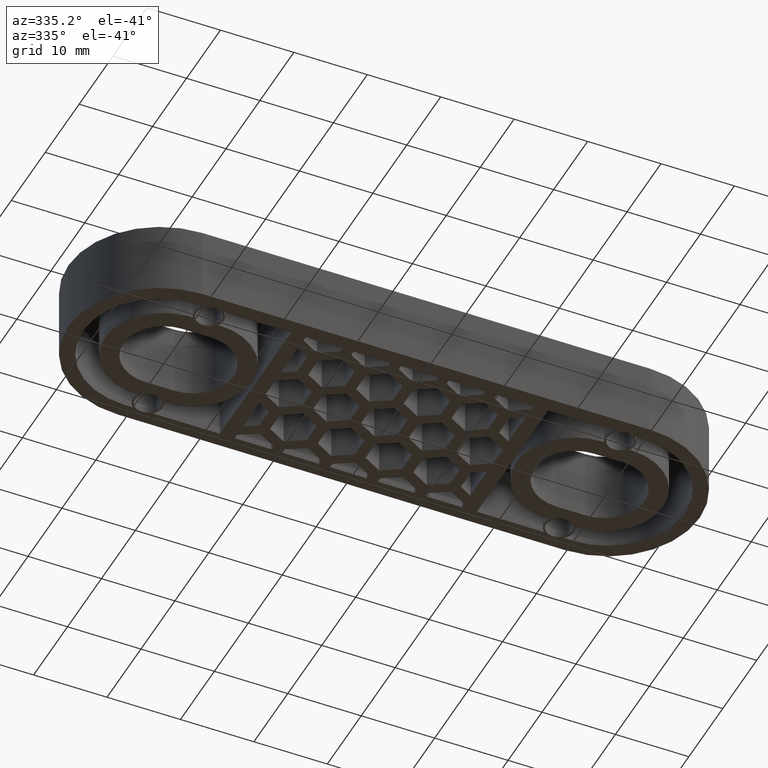
[diagram: clean part render]
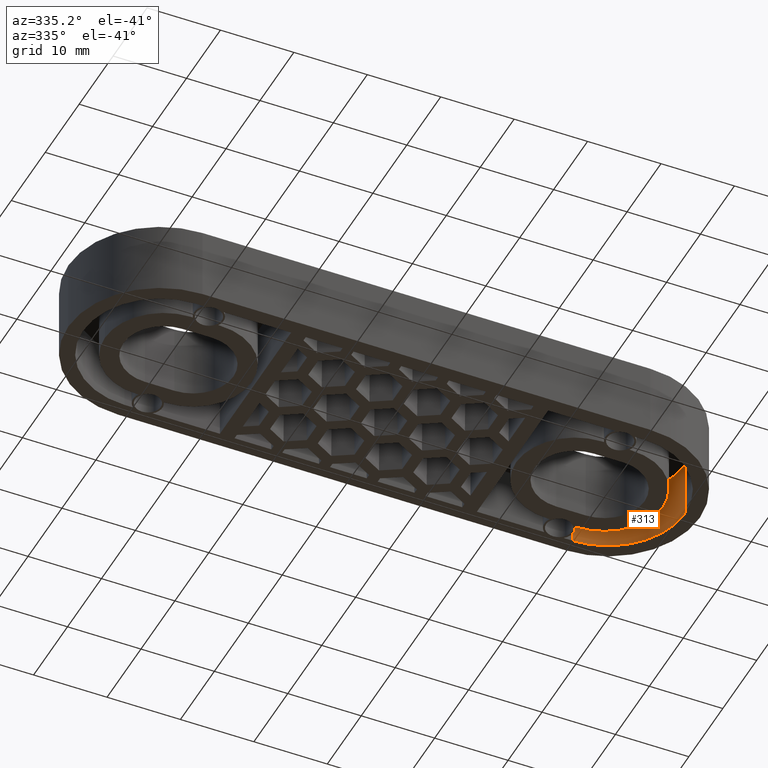
[diagram: same view with one face highlighted and labeled with its STEP entity id]
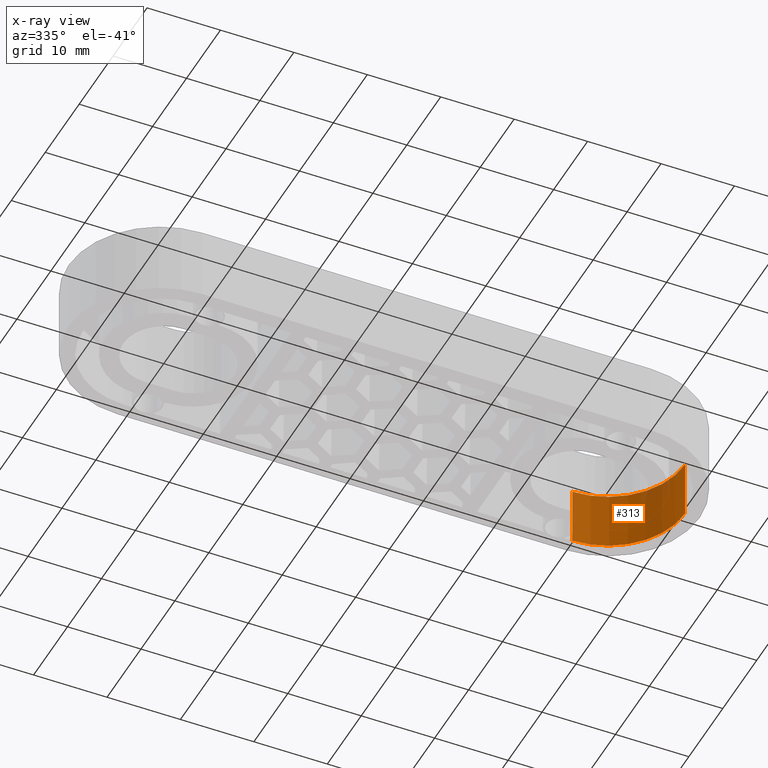
[diagram: x-ray of the same camera — body ghosted, the highlighted face saturated]
A machine part, auxiliary view. The second image highlights one B-rep face of the part: STEP entity #313.
The next image is the same camera in x-ray: the body ghosted, the highlighted face saturated — about 6% of this face is hidden behind the body in this view.
In plain terms, the highlighted cylindrical surface (partial cylindrical patch) has radius 10.5 mm, axis along (-0, -0, -1).
Its self-contained STEP definition (entity closure, byte-faithful):
#313 = ADVANCED_FACE( '', ( #878 ), #879, .F. );
#878 = FACE_OUTER_BOUND( '', #1486, .T. );
#879 = CYLINDRICAL_SURFACE( '', #1487, 10.5000000000000 );
#1486 = EDGE_LOOP( '', ( #3522, #3523, #3524, #3525 ) );
#1487 = AXIS2_PLACEMENT_3D( '', #3526, #3527, #3528 );
#3522 = ORIENTED_EDGE( '', *, *, #4438, .T. );
#3523 = ORIENTED_EDGE( '', *, *, #4439, .F. );
#3524 = ORIENTED_EDGE( '', *, *, #4436, .F. );
#3525 = ORIENTED_EDGE( '', *, *, #4052, .F. );
#3526 = CARTESIAN_POINT( '', ( 30.5000000000000, -9.16345992139944E-015, -7.99999999977882 ) );
#3527 = DIRECTION( '', ( -3.57760047719280E-033, -6.12303176911189E-017, -1.00000000000000 ) );
#3528 = DIRECTION( '', ( 0.661437827766147, -0.750000000000001, 4.59227382683392E-017 ) );
#4052 = EDGE_CURVE( '', #4997, #4999, #5000, .F. );
#4436 = EDGE_CURVE( '', #4999, #5571, #5572, .T. );
#4438 = EDGE_CURVE( '', #4997, #5574, #5575, .T. );
#4439 = EDGE_CURVE( '', #5571, #5574, #5576, .T. );
#4997 = VERTEX_POINT( '', #6368 );
#4999 = VERTEX_POINT( '', #6370 );
#5000 = CIRCLE( '', #6371, 10.5000000000000 );
#5571 = VERTEX_POINT( '', #7302 );
#5572 = LINE( '', #7303, #7304 );
#5574 = VERTEX_POINT( '', #7307 );
#5575 = LINE( '', #7308, #7309 );
#5576 = CIRCLE( '', #7310, 10.5000000000000 );
#6368 = CARTESIAN_POINT( '', ( 41.0000000000000, -5.20417042793042E-015, -2.77555756156289E-014 ) );
#6370 = CARTESIAN_POINT( '', ( 30.5000000000000, 10.5000000000000, -2.83984939513857E-014 ) );
#6371 = AXIS2_PLACEMENT_3D( '', #7790, #7791, #7792 );
#7302 = CARTESIAN_POINT( '', ( 30.5000000000000, 10.5000000000000, 7.99999999999998 ) );
#7303 = CARTESIAN_POINT( '', ( 30.5000000000000, 10.5000000000000, -7.99999999977882 ) );
#7304 = VECTOR( '', #8222, 1000.00000000000 );
#7307 = CARTESIAN_POINT( '', ( 41.0000000000000, -4.71432788640147E-015, 7.99999999999998 ) );
#7308 = CARTESIAN_POINT( '', ( 41.0000000000000, -5.69401296944583E-015, -7.99999999977882 ) );
#7309 = VECTOR( '', #8224, 1000.00000000000 );
#7310 = AXIS2_PLACEMENT_3D( '', #8225, #8226, #8227 );
#7790 = CARTESIAN_POINT( '', ( 30.5000000000000, -8.67361737988404E-015, -2.77555756156289E-014 ) );
#7791 = DIRECTION( '', ( 0.000000000000000, -6.12303176911189E-017, -1.00000000000000 ) );
#7792 = DIRECTION( '', ( 0.000000000000000, 1.00000000000000, -6.12303176911189E-017 ) );
#8222 = DIRECTION( '', ( 0.000000000000000, 6.12303176911189E-017, 1.00000000000000 ) );
#8224 = DIRECTION( '', ( 0.000000000000000, 6.12303176911189E-017, 1.00000000000000 ) );
#8225 = CARTESIAN_POINT( '', ( 30.5000000000000, -8.18377483835509E-015, 7.99999999999998 ) );
#8226 = DIRECTION( '', ( 0.000000000000000, -6.12303176911189E-017, -1.00000000000000 ) );
#8227 = DIRECTION( '', ( -1.11022302462516E-016, 1.00000000000000, -6.12303176911189E-017 ) );